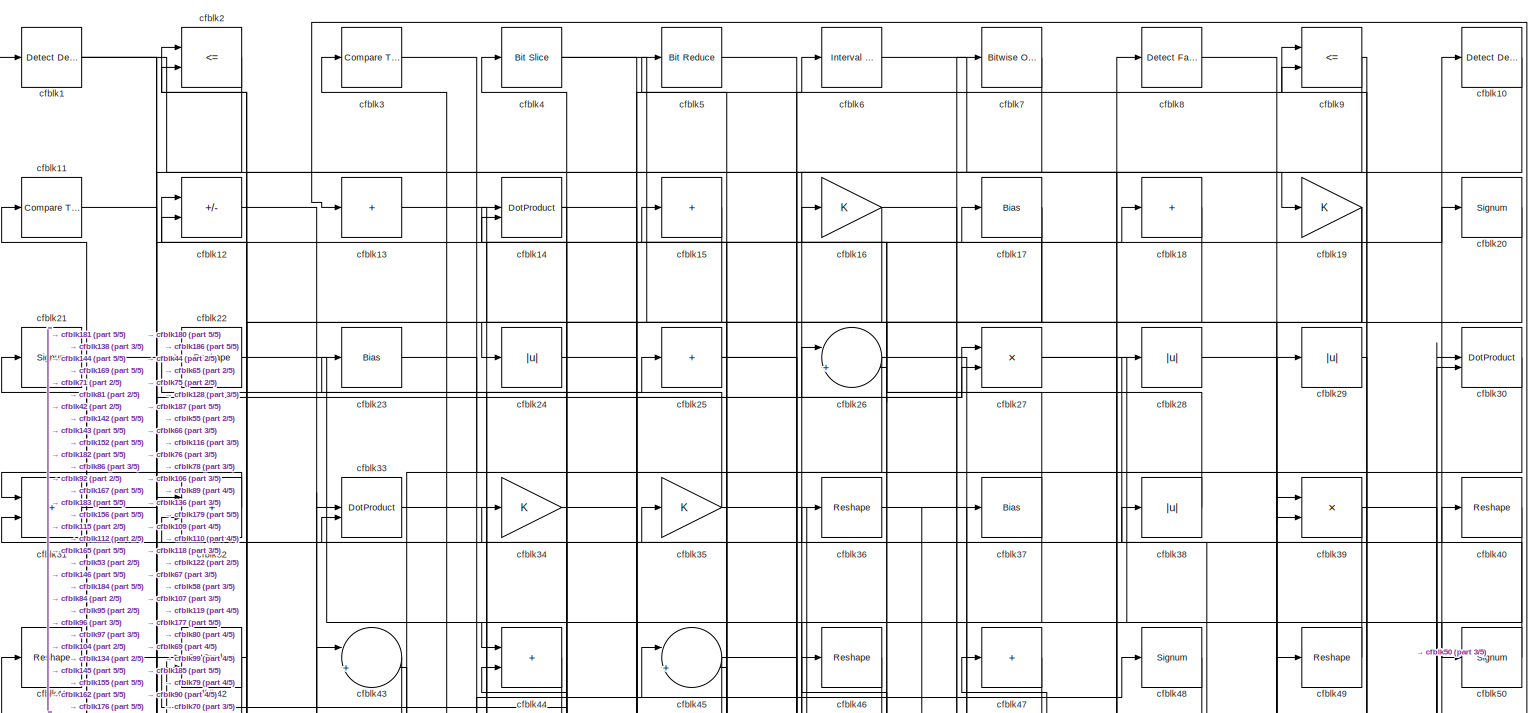
[diagram: root canvas - part 1/5, full width, top band]
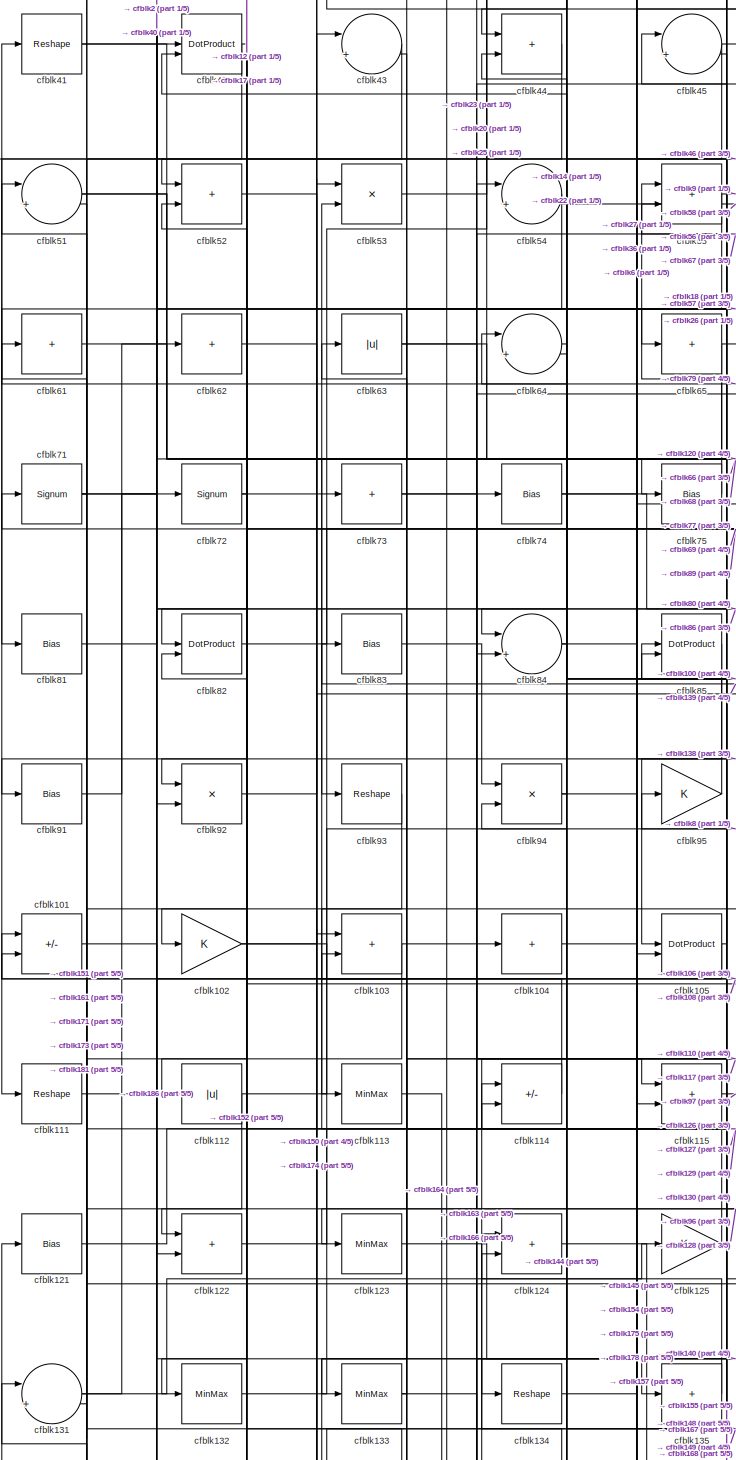
[diagram: root canvas - part 2/5, middle left region]
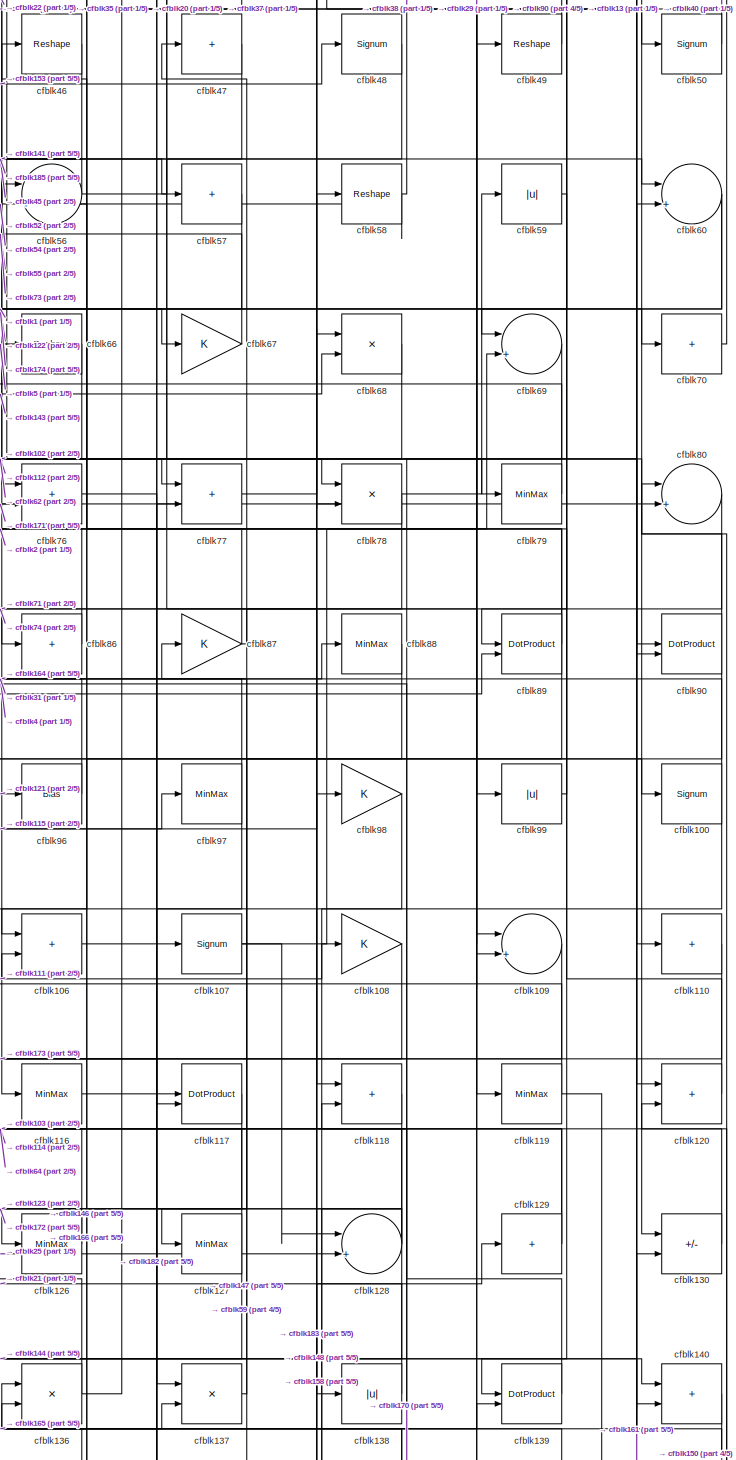
[diagram: root canvas - part 3/5, middle right region]
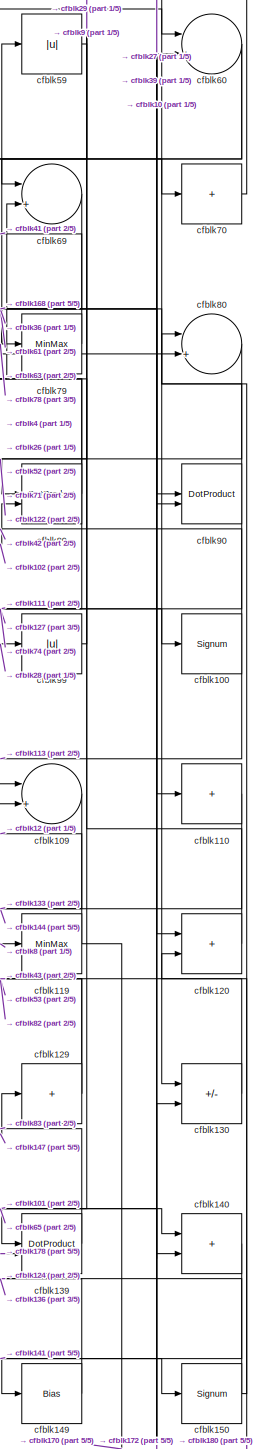
[diagram: root canvas - part 4/5, middle right region]
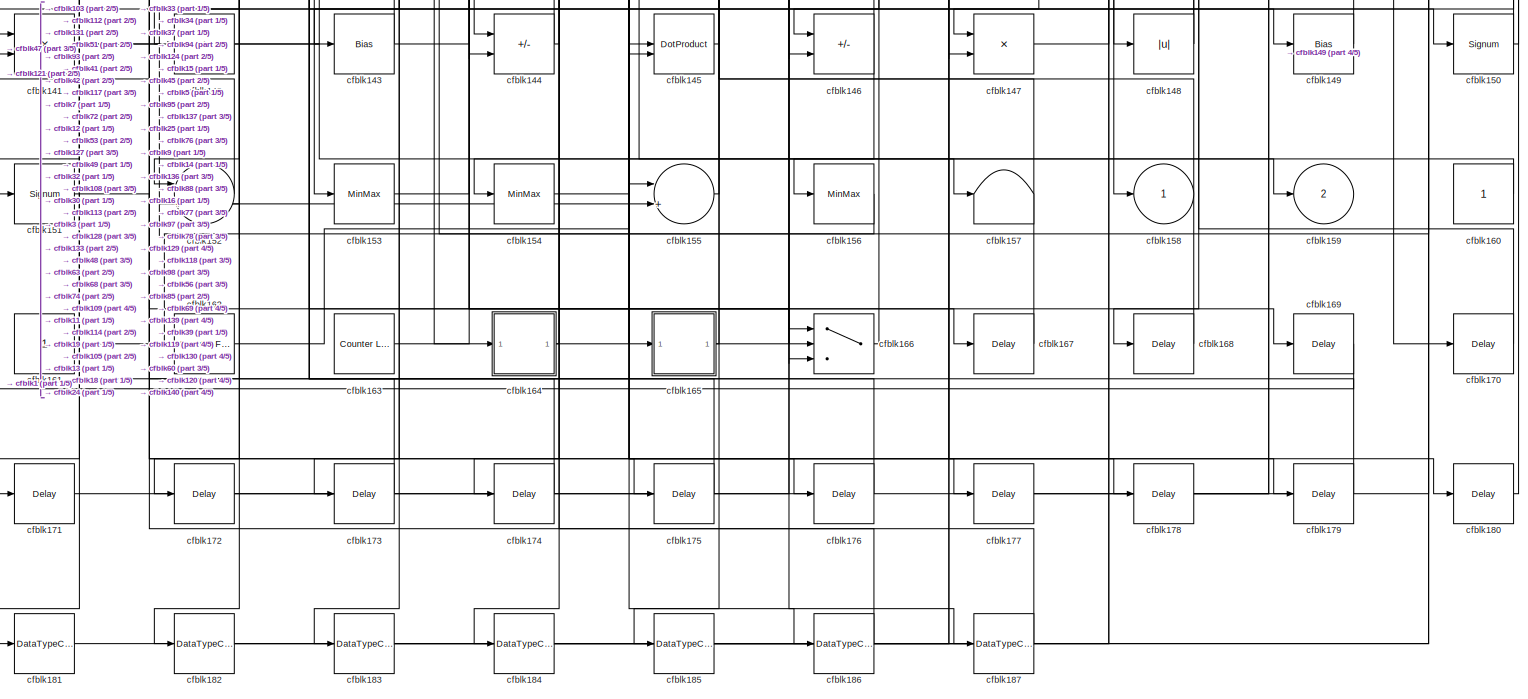
[diagram: root canvas - part 5/5, full width, bottom band]
MODEL slx_fb00ba5afc3f
KIND model
CONFIG AbsTol = auto
CONFIG EnableMultiTasking = off
CONFIG FixedStep = auto
CONFIG MaxStep = auto
CONFIG MinStep = auto
CONFIG RelTol = 1e-3
CONFIG SampleTimeConstraint = Unconstrained
CONFIG SolverName = VariableStepAuto
CONFIG StartTime = 0.0
CONFIG StopTime = 10.0
BLOCK [Reference] cfblk1  REF=simulink/Logic and Bit
Operations/Detect
Decrease
  LibrarySourceBlock = hdlsllib/Logic and Bit\nOperations/Detect\nDecrease
  SourceBlock = simulink/Logic and Bit\nOperations/Detect\nDecrease
  SourceType = Detect Decrease
BLOCK [Reference] cfblk10  REF=simulink/Logic and Bit
Operations/Detect
Decrease
  LibrarySourceBlock = hdlsllib/Logic and Bit\nOperations/Detect\nDecrease
  SourceBlock = simulink/Logic and Bit\nOperations/Detect\nDecrease
  SourceType = Detect Decrease
BLOCK [Signum] cfblk100
BLOCK [Sum] cfblk101
  IconShape = rectangular
  Inputs = +-
BLOCK [Gain] cfblk102
BLOCK [Sum] cfblk103
  IconShape = rectangular
BLOCK [Sum] cfblk104
  IconShape = rectangular
  Inputs = +
BLOCK [DotProduct] cfblk105
  OutDataTypeStr = Inherit: Inherit via internal rule
BLOCK [Sum] cfblk106
  IconShape = rectangular
BLOCK [Signum] cfblk107
BLOCK [Gain] cfblk108
BLOCK [Sum] cfblk109
  Inputs = |++
BLOCK [Reference] cfblk11  REF=hdlsllib/Logic and Bit
Operations/Compare
To Constant
  SourceBlock = hdlsllib/Logic and Bit\nOperations/Compare\nTo Constant
  SourceType = Compare To Constant
BLOCK [Sum] cfblk110
  IconShape = rectangular
  Inputs = +
BLOCK [Reshape] cfblk111
BLOCK [Abs] cfblk112
  SaturateOnIntegerOverflow = off
BLOCK [MinMax] cfblk113
BLOCK [Sum] cfblk114
  IconShape = rectangular
  Inputs = +-
BLOCK [Sum] cfblk115
  IconShape = rectangular
BLOCK [MinMax] cfblk116
BLOCK [DotProduct] cfblk117
  OutDataTypeStr = Inherit: Inherit via internal rule
BLOCK [Sum] cfblk118
  IconShape = rectangular
BLOCK [MinMax] cfblk119
BLOCK [Sum] cfblk12
  IconShape = rectangular
  Inputs = +-
BLOCK [Sum] cfblk120
  IconShape = rectangular
BLOCK [Bias] cfblk121
  Bias = 0.0
  SaturateOnIntegerOverflow = off
BLOCK [Sum] cfblk122
  IconShape = rectangular
BLOCK [MinMax] cfblk123
BLOCK [Sum] cfblk124
  IconShape = rectangular
BLOCK [Gain] cfblk125
BLOCK [MinMax] cfblk126
BLOCK [MinMax] cfblk127
BLOCK [Sum] cfblk128
  Inputs = |++
BLOCK [Sum] cfblk129
  IconShape = rectangular
  Inputs = +
BLOCK [Sum] cfblk13
  IconShape = rectangular
  Inputs = +
BLOCK [Sum] cfblk130
  IconShape = rectangular
  Inputs = +-
BLOCK [Sum] cfblk131
  Inputs = |++
BLOCK [MinMax] cfblk132
BLOCK [MinMax] cfblk133
BLOCK [Reshape] cfblk134
BLOCK [Sum] cfblk135
  IconShape = rectangular
  Inputs = +
BLOCK [Product] cfblk136
  Inputs = */
  RndMeth = Zero
  SaturateOnIntegerOverflow = on
BLOCK [Product] cfblk137
  Inputs = */
  RndMeth = Zero
  SaturateOnIntegerOverflow = on
BLOCK [Abs] cfblk138
  SaturateOnIntegerOverflow = off
BLOCK [DotProduct] cfblk139
  OutDataTypeStr = Inherit: Inherit via internal rule
BLOCK [DotProduct] cfblk14
  OutDataTypeStr = Inherit: Inherit via internal rule
BLOCK [Sum] cfblk140
  IconShape = rectangular
BLOCK [Product] cfblk141
  Inputs = */
  RndMeth = Zero
  SaturateOnIntegerOverflow = on
BLOCK [Sum] cfblk142
  IconShape = rectangular
  Inputs = +
BLOCK [Bias] cfblk143
  Bias = 0.0
  SaturateOnIntegerOverflow = off
BLOCK [Sum] cfblk144
  IconShape = rectangular
  Inputs = +-
BLOCK [DotProduct] cfblk145
  OutDataTypeStr = Inherit: Inherit via internal rule
BLOCK [Sum] cfblk146
  IconShape = rectangular
  Inputs = +-
BLOCK [Product] cfblk147
  Inputs = */
  RndMeth = Zero
  SaturateOnIntegerOverflow = on
BLOCK [Abs] cfblk148
  SaturateOnIntegerOverflow = off
BLOCK [Bias] cfblk149
  Bias = 0.0
  SaturateOnIntegerOverflow = off
BLOCK [Sum] cfblk15
  IconShape = rectangular
  Inputs = +
BLOCK [Signum] cfblk150
BLOCK [Signum] cfblk151
BLOCK [Sum] cfblk152
  Inputs = |++
BLOCK [MinMax] cfblk153
BLOCK [MinMax] cfblk154
BLOCK [Sum] cfblk155
  Inputs = |++
BLOCK [MinMax] cfblk156
BLOCK [Terminator] cfblk157
BLOCK [Outport] cfblk158
  VectorParamsAs1DForOutWhenUnconnected = off
BLOCK [Outport] cfblk159
  Port = 2
  VectorParamsAs1DForOutWhenUnconnected = off
BLOCK [Gain] cfblk16
BLOCK [Constant] cfblk160
  SampleTime = -1
BLOCK [Constant] cfblk161
  SampleTime = -1
BLOCK [Reference] cfblk162  REF=hdlsllib/Sources/Counter
Free-Running
  SourceBlock = hdlsllib/Sources/Counter\nFree-Running
  SourceType = Counter Free-Running
BLOCK [Reference] cfblk163  REF=hdlsllib/Sources/Counter
Limited
  SourceBlock = hdlsllib/Sources/Counter\nLimited
  SourceType = Counter Limited
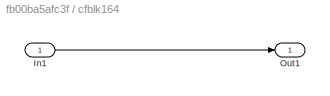
BLOCK [SubSystem] cfblk164
  LibrarySourceBlock = hdlsllib/Ports &\nSubsystems/Subsystem
BLOCK [Inport] cfblk164/In1
BLOCK [Outport] cfblk164/Out1
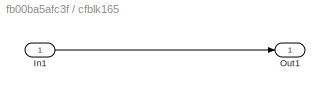
BLOCK [SubSystem] cfblk165
  LibrarySourceBlock = hdlsllib/Ports &\nSubsystems/Subsystem
BLOCK [Inport] cfblk165/In1
BLOCK [Outport] cfblk165/Out1
BLOCK [Switch] cfblk166
  InputSameDT = off
  SaturateOnIntegerOverflow = off
BLOCK [Delay] cfblk167
  InputPortMap = u0
  SampleTime = 1
BLOCK [Delay] cfblk168
  InputPortMap = u0
  SampleTime = 1
BLOCK [Delay] cfblk169
  InputPortMap = u0
  SampleTime = 1
BLOCK [Bias] cfblk17
  Bias = 0.0
  SaturateOnIntegerOverflow = off
BLOCK [Delay] cfblk170
  InputPortMap = u0
  SampleTime = 1
BLOCK [Delay] cfblk171
  InputPortMap = u0
  SampleTime = 1
BLOCK [Delay] cfblk172
  InputPortMap = u0
  SampleTime = 1
BLOCK [Delay] cfblk173
  InputPortMap = u0
  SampleTime = 1
BLOCK [Delay] cfblk174
  InputPortMap = u0
  SampleTime = 1
BLOCK [Delay] cfblk175
  InputPortMap = u0
  SampleTime = 1
BLOCK [Delay] cfblk176
  InputPortMap = u0
  SampleTime = 1
BLOCK [Delay] cfblk177
  InputPortMap = u0
  SampleTime = 1
BLOCK [Delay] cfblk178
  InputPortMap = u0
  SampleTime = 1
BLOCK [Delay] cfblk179
  InputPortMap = u0
  SampleTime = 1
BLOCK [Sum] cfblk18
  IconShape = rectangular
  Inputs = +
BLOCK [Delay] cfblk180
  InputPortMap = u0
  SampleTime = 1
BLOCK [DataTypeConversion] cfblk181
  OutDataTypeStr = boolean
  RndMeth = Floor
  SaturateOnIntegerOverflow = off
BLOCK [DataTypeConversion] cfblk182
  RndMeth = Floor
  SaturateOnIntegerOverflow = off
BLOCK [DataTypeConversion] cfblk183
  OutDataTypeStr = uint8
  RndMeth = Floor
  SaturateOnIntegerOverflow = off
BLOCK [DataTypeConversion] cfblk184
  OutDataTypeStr = uint8
  RndMeth = Floor
  SaturateOnIntegerOverflow = off
BLOCK [DataTypeConversion] cfblk185
  OutDataTypeStr = uint8
  RndMeth = Floor
  SaturateOnIntegerOverflow = off
BLOCK [DataTypeConversion] cfblk186
  OutDataTypeStr = uint8
  RndMeth = Floor
  SaturateOnIntegerOverflow = off
BLOCK [DataTypeConversion] cfblk187
  OutDataTypeStr = uint8
  RndMeth = Floor
  SaturateOnIntegerOverflow = off
BLOCK [Gain] cfblk19
BLOCK [RelationalOperator] cfblk2
  InputSameDT = off
  Operator = <=
  OutDataTypeStr = boolean
BLOCK [Signum] cfblk20
BLOCK [Signum] cfblk21
BLOCK [Reshape] cfblk22
BLOCK [Bias] cfblk23
  Bias = 0.0
  SaturateOnIntegerOverflow = off
BLOCK [Abs] cfblk24
  SaturateOnIntegerOverflow = off
BLOCK [Sum] cfblk25
  IconShape = rectangular
  Inputs = +
BLOCK [Sum] cfblk26
  Inputs = |++
BLOCK [Product] cfblk27
  Inputs = */
  RndMeth = Zero
  SaturateOnIntegerOverflow = on
BLOCK [Abs] cfblk28
  SaturateOnIntegerOverflow = off
BLOCK [Abs] cfblk29
  SaturateOnIntegerOverflow = off
BLOCK [Reference] cfblk3  REF=hdlsllib/Logic and Bit
Operations/Compare
To Zero
  SourceBlock = hdlsllib/Logic and Bit\nOperations/Compare\nTo Zero
  SourceType = Compare To Zero
BLOCK [DotProduct] cfblk30
  OutDataTypeStr = Inherit: Inherit via internal rule
BLOCK [Sum] cfblk31
  IconShape = rectangular
BLOCK [Sum] cfblk32
  IconShape = rectangular
BLOCK [DotProduct] cfblk33
  OutDataTypeStr = Inherit: Inherit via internal rule
BLOCK [Gain] cfblk34
BLOCK [Gain] cfblk35
BLOCK [Reshape] cfblk36
BLOCK [Bias] cfblk37
  Bias = 0.0
  SaturateOnIntegerOverflow = off
BLOCK [Abs] cfblk38
  SaturateOnIntegerOverflow = off
BLOCK [Product] cfblk39
  Inputs = */
  RndMeth = Zero
  SaturateOnIntegerOverflow = on
BLOCK [Reference] cfblk4  REF=hdlsllib/Logic and Bit
Operations/Bit Slice
  SourceBlock = hdlsllib/Logic and Bit\nOperations/Bit Slice
  SourceType = Bit Slice
BLOCK [Reshape] cfblk40
BLOCK [Reshape] cfblk41
BLOCK [DotProduct] cfblk42
  OutDataTypeStr = Inherit: Inherit via internal rule
BLOCK [Sum] cfblk43
  Inputs = |++
BLOCK [Sum] cfblk44
  IconShape = rectangular
BLOCK [Sum] cfblk45
  Inputs = |++
BLOCK [Reshape] cfblk46
BLOCK [Sum] cfblk47
  IconShape = rectangular
  Inputs = +
BLOCK [Signum] cfblk48
BLOCK [Reshape] cfblk49
BLOCK [Reference] cfblk5  REF=hdlsllib/Logic and Bit
Operations/Bit Reduce
  SourceBlock = hdlsllib/Logic and Bit\nOperations/Bit Reduce
  SourceType = Bit Reduce
BLOCK [Signum] cfblk50
BLOCK [Sum] cfblk51
  Inputs = |++
BLOCK [Sum] cfblk52
  IconShape = rectangular
BLOCK [Product] cfblk53
  Inputs = */
  RndMeth = Zero
  SaturateOnIntegerOverflow = on
BLOCK [Sum] cfblk54
  Inputs = |++
BLOCK [Sum] cfblk55
  IconShape = rectangular
BLOCK [Sum] cfblk56
  Inputs = |++
BLOCK [Sum] cfblk57
  IconShape = rectangular
  Inputs = +
BLOCK [Reshape] cfblk58
BLOCK [Abs] cfblk59
  SaturateOnIntegerOverflow = off
BLOCK [Reference] cfblk6  REF=hdlsllib/Logic and Bit
Operations/Interval Test
  SourceBlock = hdlsllib/Logic and Bit\nOperations/Interval Test
  SourceType = Interval Test
BLOCK [Sum] cfblk60
  Inputs = |++
BLOCK [Sum] cfblk61
  IconShape = rectangular
  Inputs = +
BLOCK [Sum] cfblk62
  IconShape = rectangular
  Inputs = +
BLOCK [Abs] cfblk63
  SaturateOnIntegerOverflow = off
BLOCK [Sum] cfblk64
  Inputs = |++
BLOCK [Sum] cfblk65
  IconShape = rectangular
  Inputs = +
BLOCK [Reshape] cfblk66
BLOCK [Gain] cfblk67
BLOCK [Product] cfblk68
  Inputs = */
  RndMeth = Zero
  SaturateOnIntegerOverflow = on
BLOCK [Sum] cfblk69
  Inputs = |++
BLOCK [Reference] cfblk7  REF=simulink/Logic and Bit
Operations/Bitwise
Operator
  LibrarySourceBlock = hdlsllib/Logic and Bit\nOperations/Bitwise\nOperator
  SourceBlock = simulink/Logic and Bit\nOperations/Bitwise\nOperator
  SourceType = Bitwise Operator
BLOCK [Sum] cfblk70
  IconShape = rectangular
  Inputs = +
BLOCK [Signum] cfblk71
BLOCK [Signum] cfblk72
BLOCK [Sum] cfblk73
  IconShape = rectangular
  Inputs = +
BLOCK [Bias] cfblk74
  Bias = 0.0
  SaturateOnIntegerOverflow = off
BLOCK [Bias] cfblk75
  Bias = 0.0
  SaturateOnIntegerOverflow = off
BLOCK [Sum] cfblk76
  IconShape = rectangular
BLOCK [Sum] cfblk77
  IconShape = rectangular
BLOCK [Product] cfblk78
  Inputs = */
  RndMeth = Zero
  SaturateOnIntegerOverflow = on
BLOCK [MinMax] cfblk79
BLOCK [Reference] cfblk8  REF=hdlsllib/Logic and Bit
Operations/Detect Fall
Nonpositive
  SourceBlock = hdlsllib/Logic and Bit\nOperations/Detect Fall\nNonpositive
  SourceType = Detect Fall Nonpositive
BLOCK [Sum] cfblk80
  Inputs = |++
BLOCK [Bias] cfblk81
  Bias = 0.0
  SaturateOnIntegerOverflow = off
BLOCK [DotProduct] cfblk82
  OutDataTypeStr = Inherit: Inherit via internal rule
BLOCK [Bias] cfblk83
  Bias = 0.0
  SaturateOnIntegerOverflow = off
BLOCK [Sum] cfblk84
  Inputs = |++
BLOCK [DotProduct] cfblk85
  OutDataTypeStr = Inherit: Inherit via internal rule
BLOCK [Sum] cfblk86
  IconShape = rectangular
  Inputs = +
BLOCK [Gain] cfblk87
BLOCK [MinMax] cfblk88
BLOCK [DotProduct] cfblk89
  OutDataTypeStr = Inherit: Inherit via internal rule
BLOCK [RelationalOperator] cfblk9
  InputSameDT = off
  Operator = <=
  OutDataTypeStr = boolean
BLOCK [DotProduct] cfblk90
  OutDataTypeStr = Inherit: Inherit via internal rule
BLOCK [Bias] cfblk91
  Bias = 0.0
  SaturateOnIntegerOverflow = off
BLOCK [Product] cfblk92
  Inputs = */
  RndMeth = Zero
  SaturateOnIntegerOverflow = on
BLOCK [Reshape] cfblk93
BLOCK [Product] cfblk94
  Inputs = */
  RndMeth = Zero
  SaturateOnIntegerOverflow = on
BLOCK [Gain] cfblk95
BLOCK [Bias] cfblk96
  Bias = 0.0
  SaturateOnIntegerOverflow = off
BLOCK [MinMax] cfblk97
BLOCK [Gain] cfblk98
BLOCK [Abs] cfblk99
  SaturateOnIntegerOverflow = off
NET cfblk100:1 -> cfblk113:1, cfblk42:2
LINE cfblk101:1 -> cfblk140:1
NET cfblk102:1 -> cfblk106:2, cfblk89:2
NET cfblk103:1 -> cfblk104:1, cfblk181:1
LINE cfblk104:1 -> cfblk6:1
NET cfblk105:1 -> cfblk101:2, cfblk45:1
LINE cfblk106:1 -> cfblk137:1
NET cfblk107:1 -> cfblk128:1, cfblk29:1
LINE cfblk108:1 -> cfblk173:1
LINE cfblk109:1 -> cfblk144:1
LINE cfblk10:1 -> cfblk116:1
LINE cfblk110:1 -> cfblk133:1
LINE cfblk111:1 -> cfblk108:1
NET cfblk112:1 -> cfblk171:1, cfblk20:1
LINE cfblk113:1 -> cfblk164:1
LINE cfblk114:1 -> cfblk101:1
LINE cfblk115:1 -> cfblk97:1
LINE cfblk116:1 -> cfblk117:1
LINE cfblk117:1 -> cfblk172:1
LINE cfblk118:1 -> cfblk148:1
NET cfblk119:1 -> cfblk12:1, cfblk170:1
LINE cfblk11:1 -> cfblk169:1
LINE cfblk120:1 -> cfblk71:1
LINE cfblk121:1 -> cfblk96:1
LINE cfblk122:1 -> cfblk8:1
LINE cfblk123:1 -> cfblk135:1
LINE cfblk124:1 -> cfblk157:1
LINE cfblk125:1 -> cfblk61:1
LINE cfblk126:1 -> cfblk64:1
NET cfblk127:1 -> cfblk114:2, cfblk153:1
NET cfblk128:1 -> cfblk103:2, cfblk123:1, cfblk126:1, cfblk144:2
NET cfblk129:1 -> cfblk43:2, cfblk82:2
LINE cfblk12:1 -> cfblk167:1
LINE cfblk130:1 -> cfblk53:2
NET cfblk131:1 -> cfblk125:1, cfblk62:1
LINE cfblk132:1 -> cfblk54:1
NET cfblk133:1 -> cfblk166:3, cfblk63:1
LINE cfblk134:1 -> cfblk36:1
LINE cfblk135:1 -> cfblk94:2
NET cfblk136:1 -> cfblk35:1, cfblk37:1
LINE cfblk137:1 -> cfblk87:1
LINE cfblk138:1 -> cfblk21:1
LINE cfblk139:1 -> cfblk83:1
LINE cfblk13:1 -> cfblk155:1
LINE cfblk140:1 -> cfblk141:1
NET cfblk141:1 -> cfblk149:1, cfblk155:2
NET cfblk142:1 -> cfblk159:1, cfblk49:1
NET cfblk143:1 -> cfblk32:2, cfblk68:2
NET cfblk144:1 -> cfblk11:1, cfblk124:2
LINE cfblk145:1 -> cfblk15:1
NET cfblk146:1 -> cfblk14:2, cfblk156:1
LINE cfblk147:1 -> cfblk129:1
NET cfblk148:1 -> cfblk56:2, cfblk85:1
LINE cfblk149:1 -> cfblk124:1
NET cfblk14:1 -> cfblk180:1, cfblk44:1
NET cfblk150:1 -> cfblk136:2, cfblk80:1
LINE cfblk151:1 -> cfblk177:1
LINE cfblk152:1 -> cfblk121:1
LINE cfblk153:1 -> cfblk48:1
LINE cfblk154:1 -> cfblk105:2
LINE cfblk155:1 -> cfblk95:1
LINE cfblk156:1 -> cfblk3:1
LINE cfblk15:1 -> cfblk24:1
LINE cfblk160:1 -> cfblk154:1
NET cfblk161:1 -> cfblk51:1, cfblk60:2
LINE cfblk162:1 -> cfblk18:1
LINE cfblk163:1 -> cfblk74:1
LINE cfblk164/In1:1 -> cfblk164/Out1:1
NET cfblk164:1 -> cfblk114:1, cfblk88:1
LINE cfblk165/In1:1 -> cfblk165/Out1:1
NET cfblk165:1 -> cfblk137:2, cfblk5:1
LINE cfblk166:1 -> cfblk136:1
LINE cfblk167:1 -> cfblk85:2
LINE cfblk168:1 -> cfblk45:2
LINE cfblk169:1 -> cfblk1:1
NET cfblk16:1 -> cfblk152:1, cfblk179:1
LINE cfblk170:1 -> cfblk118:2
LINE cfblk171:1 -> cfblk76:2
LINE cfblk172:1 -> cfblk130:2
LINE cfblk173:1 -> cfblk131:1
LINE cfblk174:1 -> cfblk103:1
LINE cfblk175:1 -> cfblk53:1
LINE cfblk176:1 -> cfblk32:1
LINE cfblk177:1 -> cfblk39:1
LINE cfblk178:1 -> cfblk139:2
LINE cfblk179:1 -> cfblk33:1
NET cfblk17:1 -> cfblk26:2, cfblk92:1
LINE cfblk180:1 -> cfblk120:2
LINE cfblk181:1 -> cfblk7:1
NET cfblk182:1 -> cfblk77:2, cfblk98:1
LINE cfblk183:1 -> cfblk68:1
LINE cfblk184:1 -> cfblk30:1
LINE cfblk185:1 -> cfblk30:2
LINE cfblk186:1 -> cfblk42:1
LINE cfblk187:1 -> cfblk34:1
LINE cfblk18:1 -> cfblk75:1
NET cfblk19:1 -> cfblk142:1, cfblk184:1
NET cfblk1:1 -> cfblk118:1, cfblk67:1, cfblk70:1
LINE cfblk20:1 -> cfblk106:1
LINE cfblk21:1 -> cfblk78:2
LINE cfblk22:1 -> cfblk50:1
LINE cfblk23:1 -> cfblk115:1
LINE cfblk24:1 -> cfblk176:1
NET cfblk25:1 -> cfblk128:2, cfblk187:1
NET cfblk26:1 -> cfblk109:1, cfblk65:1
NET cfblk27:1 -> cfblk79:1, cfblk90:1
LINE cfblk28:1 -> cfblk99:1
LINE cfblk29:1 -> cfblk69:1
LINE cfblk2:1 -> cfblk92:2
LINE cfblk30:1 -> cfblk183:1
LINE cfblk31:1 -> cfblk27:2
LINE cfblk32:1 -> cfblk31:1
LINE cfblk33:1 -> cfblk165:1
LINE cfblk34:1 -> cfblk186:1
NET cfblk35:1 -> cfblk23:1, cfblk78:1
LINE cfblk36:1 -> cfblk110:1
NET cfblk37:1 -> cfblk145:2, cfblk16:1
LINE cfblk38:1 -> cfblk14:1
NET cfblk39:1 -> cfblk33:2, cfblk90:2
LINE cfblk3:1 -> cfblk39:2
LINE cfblk40:1 -> cfblk76:1
NET cfblk41:1 -> cfblk145:1, cfblk175:1
NET cfblk42:1 -> cfblk12:2, cfblk131:2
LINE cfblk43:1 -> cfblk82:1
LINE cfblk44:1 -> cfblk91:1
NET cfblk45:1 -> cfblk134:1, cfblk57:1
LINE cfblk46:1 -> cfblk115:2
LINE cfblk47:1 -> cfblk141:2
LINE cfblk48:1 -> cfblk185:1
LINE cfblk49:1 -> cfblk28:1
NET cfblk4:1 -> cfblk109:2, cfblk80:2
LINE cfblk50:1 -> cfblk2:2
NET cfblk51:1 -> cfblk166:1, cfblk84:2
LINE cfblk52:1 -> cfblk150:1
LINE cfblk53:1 -> cfblk25:1
LINE cfblk54:1 -> cfblk73:1
NET cfblk55:1 -> cfblk81:1, cfblk9:2
NET cfblk56:1 -> cfblk52:1, cfblk60:1
LINE cfblk57:1 -> cfblk122:1
NET cfblk58:1 -> cfblk38:1, cfblk54:2
LINE cfblk59:1 -> cfblk139:1
LINE cfblk5:1 -> cfblk66:1
NET cfblk60:1 -> cfblk143:1, cfblk174:1
LINE cfblk61:1 -> cfblk120:1
LINE cfblk62:1 -> cfblk77:1
NET cfblk63:1 -> cfblk130:1, cfblk166:2
LINE cfblk64:1 -> cfblk84:1
NET cfblk65:1 -> cfblk132:1, cfblk140:2
LINE cfblk66:1 -> cfblk102:1
LINE cfblk67:1 -> cfblk55:1
LINE cfblk68:1 -> cfblk112:1
LINE cfblk69:1 -> cfblk168:1
LINE cfblk6:1 -> cfblk19:1
LINE cfblk70:1 -> cfblk13:1
NET cfblk71:1 -> cfblk40:1, cfblk51:2, cfblk86:1
NET cfblk72:1 -> cfblk152:2, cfblk93:1
NET cfblk73:1 -> cfblk117:2, cfblk56:1
NET cfblk74:1 -> cfblk100:1, cfblk138:1
LINE cfblk75:1 -> cfblk55:2
LINE cfblk76:1 -> cfblk107:1
LINE cfblk77:1 -> cfblk58:1
NET cfblk78:1 -> cfblk147:1, cfblk59:1
LINE cfblk79:1 -> cfblk41:1
LINE cfblk7:1 -> cfblk182:1
LINE cfblk80:1 -> cfblk122:2
LINE cfblk81:1 -> cfblk17:1
LINE cfblk82:1 -> cfblk69:2
LINE cfblk83:1 -> cfblk94:1
NET cfblk84:1 -> cfblk27:1, cfblk44:2
LINE cfblk85:1 -> cfblk105:1
LINE cfblk86:1 -> cfblk2:1
NET cfblk87:1 -> cfblk46:1, cfblk47:1
LINE cfblk88:1 -> cfblk146:1
NET cfblk89:1 -> cfblk111:1, cfblk26:1, cfblk52:2
LINE cfblk8:1 -> cfblk119:1
NET cfblk90:1 -> cfblk10:1, cfblk127:1
LINE cfblk91:1 -> cfblk72:1
LINE cfblk92:1 -> cfblk43:1
LINE cfblk93:1 -> cfblk151:1
NET cfblk94:1 -> cfblk178:1, cfblk64:2
LINE cfblk95:1 -> cfblk22:1
LINE cfblk96:1 -> cfblk31:2
NET cfblk97:1 -> cfblk147:2, cfblk4:1
LINE cfblk98:1 -> cfblk158:1
LINE cfblk99:1 -> cfblk9:1
NET cfblk9:1 -> cfblk146:2, cfblk89:1
note: NET lines group one-source signal fan-out (src -> all destinations, sorted); 1:1 wires keep LINE
